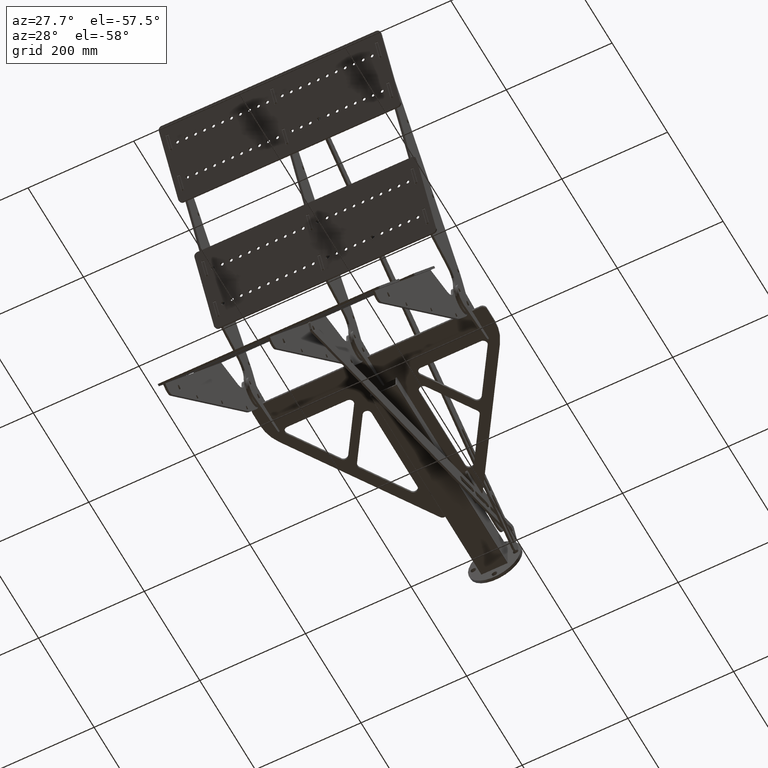
[diagram: clean part render]
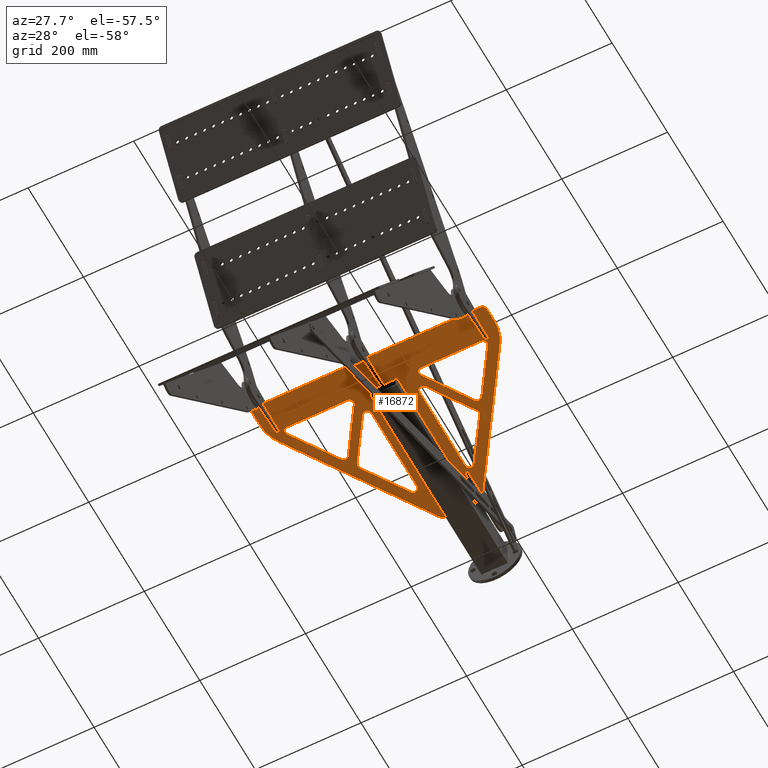
[diagram: same view with one face highlighted and labeled with its STEP entity id]
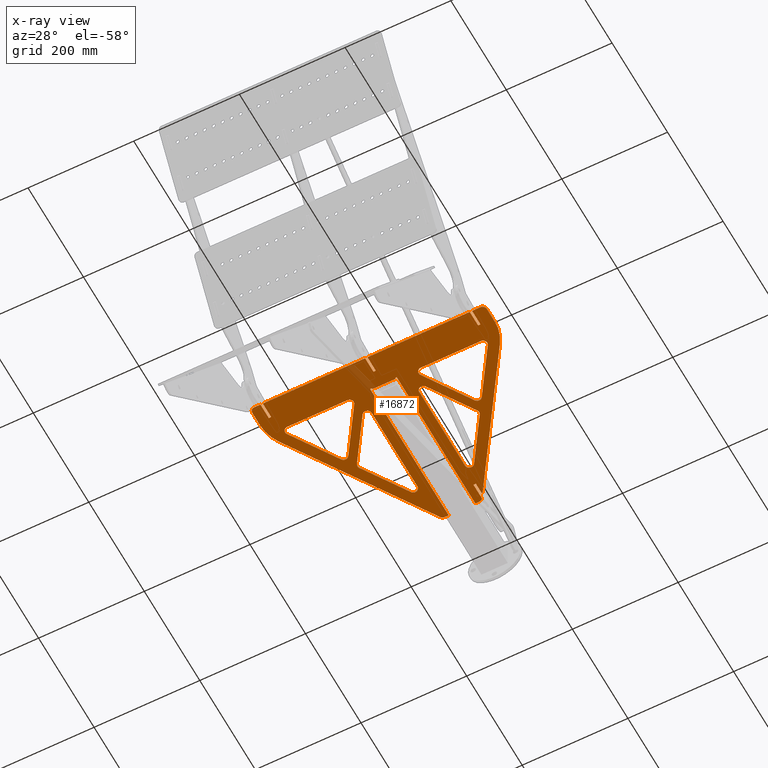
[diagram: x-ray of the same camera — body ghosted, the highlighted face saturated]
A machine part, auxiliary view. The second image highlights one B-rep face of the part: STEP entity #16872.
The next image is the same camera in x-ray: the body ghosted, the highlighted face saturated — about 2% of this face is hidden behind the body in this view.
In plain terms, the highlighted planar face has unit normal (0, 0, 1).
Its self-contained STEP definition (entity closure, byte-faithful):
#94 = DIRECTION ( 'NONE',  ( 0.0000000000000000000, 1.000000000000000000, 0.0000000000000000000 ) ) ;
#110 = DIRECTION ( 'NONE',  ( -0.0000000000000000000, -1.000000000000000000, 0.0000000000000000000 ) ) ;
#161 = VECTOR ( 'NONE', #9439, 1000.000000000000000 ) ;
#183 = CIRCLE ( 'NONE', #373, 80.00000000000001400 ) ;
#235 = CARTESIAN_POINT ( 'NONE',  ( 19.79999999999999400, 0.0000000000000000000, 0.0000000000000000000 ) ) ;
#274 = AXIS2_PLACEMENT_3D ( 'NONE', #15060, #7241, #16372 ) ;
#311 = VERTEX_POINT ( 'NONE', #14404 ) ;
#324 = CARTESIAN_POINT ( 'NONE',  ( 284.7075461424287800, 72.39119889813140700, 0.0000000000000000000 ) ) ;
#344 = CARTESIAN_POINT ( 'NONE',  ( 291.3946510641233700, 59.99999999962408000, 0.0000000000000000000 ) ) ;
#368 = DIRECTION ( 'NONE',  ( -1.000000000000000000, -0.0000000000000000000, -0.0000000000000000000 ) ) ;
#373 = AXIS2_PLACEMENT_3D ( 'NONE', #9337, #1478, #10697 ) ;
#381 = ORIENTED_EDGE ( 'NONE', *, *, #1196, .F. ) ;
#394 = DIRECTION ( 'NONE',  ( -1.000000000000000000, 0.0000000000000000000, 0.0000000000000000000 ) ) ;
#410 = ORIENTED_EDGE ( 'NONE', *, *, #9066, .F. ) ;
#427 = VERTEX_POINT ( 'NONE', #13125 ) ;
#435 = DIRECTION ( 'NONE',  ( 0.0000000000000000000, 0.0000000000000000000, 1.000000000000000000 ) ) ;
#517 = DIRECTION ( 'NONE',  ( -1.000000000000000000, -0.0000000000000000000, -0.0000000000000000000 ) ) ;
#669 = CARTESIAN_POINT ( 'NONE',  ( 162.3128950783386100, 270.7404790594720800, -2.168404344971008900E-016 ) ) ;
#673 = DIRECTION ( 'NONE',  ( -0.0000000000000000000, 0.0000000000000000000, 1.000000000000000000 ) ) ;
#730 = ORIENTED_EDGE ( 'NONE', *, *, #2771, .F. ) ;
#735 = EDGE_CURVE ( 'NONE', #6347, #4313, #16892, .T. ) ;
#750 = CARTESIAN_POINT ( 'NONE',  ( 291.3946510641233700, 67.99999999962462000, 0.0000000000000000000 ) ) ;
#778 = EDGE_CURVE ( 'NONE', #11012, #15670, #4795, .T. ) ;
#803 = CARTESIAN_POINT ( 'NONE',  ( 284.7075461424287800, 72.39119889813142100, 0.0000000000000000000 ) ) ;
#855 = AXIS2_PLACEMENT_3D ( 'NONE', #11854, #3995, #13168 ) ;
#939 = ORIENTED_EDGE ( 'NONE', *, *, #7111, .F. ) ;
#1122 = EDGE_LOOP ( 'NONE', ( #9484, #12285, #12233, #3597, #10579, #2766, #11557, #10279, #2126, #10404, #2640, #15803, #4146, #14798, #11065, #939, #5451, #15853, #4596, #13800, #9024, #10992, #8725, #11436, #11109, #9860, #16618, #16349, #2817, #14665, #4591, #3363, #5606, #7813, #3179, #4436, #10224, #9861, #1668 ) ) ;
#1196 = EDGE_CURVE ( 'NONE', #8208, #16731, #14202, .T. ) ;
#1204 = CARTESIAN_POINT ( 'NONE',  ( 200.9000000000000300, 60.00000000000000000, 0.0000000000000000000 ) ) ;
#1308 = VECTOR ( 'NONE', #8218, 999.9999999999998900 ) ;
#1401 = EDGE_CURVE ( 'NONE', #5699, #11332, #9810, .T. ) ;
#1436 = DIRECTION ( 'NONE',  ( -0.0000000000000000000, -0.0000000000000000000, -1.000000000000000000 ) ) ;
#1443 = CARTESIAN_POINT ( 'NONE',  ( 199.0000000000000000, 0.0000000000000000000, 0.0000000000000000000 ) ) ;
#1478 = DIRECTION ( 'NONE',  ( 0.0000000000000000000, 0.0000000000000000000, 1.000000000000000000 ) ) ;
#1489 = CARTESIAN_POINT ( 'NONE',  ( 0.0000000000000000000, 0.0000000000000000000, 0.0000000000000000000 ) ) ;
#1494 = LINE ( 'NONE', #2260, #8475 ) ;
#1559 = EDGE_CURVE ( 'NONE', #15234, #12397, #11870, .T. ) ;
#1565 = EDGE_CURVE ( 'NONE', #10385, #11012, #6739, .T. ) ;
#1583 = LINE ( 'NONE', #6701, #4650 ) ;
#1584 = CARTESIAN_POINT ( 'NONE',  ( 222.1999999999999900, 0.0000000000000000000, 0.0000000000000000000 ) ) ;
#1628 = VECTOR ( 'NONE', #2244, 1000.000000000000000 ) ;
#1661 = DIRECTION ( 'NONE',  ( 0.5488998623133517500, 0.8358881152118288200, 0.0000000000000000000 ) ) ;
#1668 = ORIENTED_EDGE ( 'NONE', *, *, #5022, .F. ) ;
#1710 = CIRCLE ( 'NONE', #10383, 7.999999999999952000 ) ;
#1850 = EDGE_CURVE ( 'NONE', #15375, #13154, #15315, .T. ) ;
#1854 = VERTEX_POINT ( 'NONE', #16932 ) ;
#1941 = DIRECTION ( 'NONE',  ( -0.0000000000000000000, -0.0000000000000000000, -1.000000000000000000 ) ) ;
#1948 = FACE_BOUND ( 'NONE', #7064, .T. ) ;
#2025 = VERTEX_POINT ( 'NONE', #803 ) ;
#2054 = ORIENTED_EDGE ( 'NONE', *, *, #2846, .F. ) ;
#2060 = DIRECTION ( 'NONE',  ( -1.000000000000000000, 0.0000000000000000000, 0.0000000000000000000 ) ) ;
#2088 = CARTESIAN_POINT ( 'NONE',  ( 436.0000000005181800, 8.000000000000000000, 0.0000000000000000000 ) ) ;
#2126 = ORIENTED_EDGE ( 'NONE', *, *, #5808, .F. ) ;
#2130 = AXIS2_PLACEMENT_3D ( 'NONE', #8552, #673, #9855 ) ;
#2169 = AXIS2_PLACEMENT_3D ( 'NONE', #9279, #1436, #10644 ) ;
#2194 = VERTEX_POINT ( 'NONE', #16922 ) ;
#2236 = CARTESIAN_POINT ( 'NONE',  ( 177.0000000000000300, 0.0000000000000000000, 0.0000000000000000000 ) ) ;
#2244 = DIRECTION ( 'NONE',  ( 0.0000000000000000000, 1.000000000000000000, -0.0000000000000000000 ) ) ;
#2248 = EDGE_CURVE ( 'NONE', #8329, #13548, #13483, .T. ) ;
#2260 = CARTESIAN_POINT ( 'NONE',  ( 0.0000000000000000000, 30.19999999999999900, 0.0000000000000000000 ) ) ;
#2358 = FACE_BOUND ( 'NONE', #3748, .T. ) ;
#2373 = LINE ( 'NONE', #8520, #12036 ) ;
#2377 = CARTESIAN_POINT ( 'NONE',  ( 283.3946510641233700, 67.99999999962462000, 0.0000000000000000000 ) ) ;
#2400 = EDGE_CURVE ( 'NONE', #3600, #11580, #3217, .T. ) ;
#2407 = ORIENTED_EDGE ( 'NONE', *, *, #4670, .F. ) ;
#2440 = AXIS2_PLACEMENT_3D ( 'NONE', #14030, #6180, #15343 ) ;
#2467 = CARTESIAN_POINT ( 'NONE',  ( 106.8193118788804300, 183.8406180475346000, 0.0000000000000000000 ) ) ;
#2605 = LINE ( 'NONE', #2973, #12231 ) ;
#2640 = ORIENTED_EDGE ( 'NONE', *, *, #13840, .F. ) ;
#2683 = CARTESIAN_POINT ( 'NONE',  ( 245.0000000000000000, 58.10000000000000900, 0.0000000000000000000 ) ) ;
#2688 = LINE ( 'NONE', #10283, #9657 ) ;
#2728 = CARTESIAN_POINT ( 'NONE',  ( 444.0000000005181300, 8.000000000000000000, 0.0000000000000000000 ) ) ;
#2766 = ORIENTED_EDGE ( 'NONE', *, *, #9180, .F. ) ;
#2771 = EDGE_CURVE ( 'NONE', #10186, #2025, #11363, .T. ) ;
#2794 = VECTOR ( 'NONE', #6722, 1000.000000000000000 ) ;
#2817 = ORIENTED_EDGE ( 'NONE', *, *, #7610, .F. ) ;
#2846 = EDGE_CURVE ( 'NONE', #5714, #16351, #16505, .T. ) ;
#2863 = VECTOR ( 'NONE', #15511, 1000.000000000000000 ) ;
#2960 = VERTEX_POINT ( 'NONE', #14207 ) ;
#2966 = VECTOR ( 'NONE', #11880, 1000.000000000000100 ) ;
#2973 = CARTESIAN_POINT ( 'NONE',  ( 0.0000000000000000000, 341.2426514745470700, 0.0000000000000000000 ) ) ;
#2997 = VERTEX_POINT ( 'NONE', #10862 ) ;
#3140 = EDGE_CURVE ( 'NONE', #15644, #1854, #13245, .T. ) ;
#3159 = PLANE ( 'NONE',  #2130 ) ;
#3179 = ORIENTED_EDGE ( 'NONE', *, *, #11307, .F. ) ;
#3195 = LINE ( 'NONE', #10522, #13263 ) ;
#3216 = CARTESIAN_POINT ( 'NONE',  ( 95.67799414878555800, 154.6914032301312700, 0.0000000000000000000 ) ) ;
#3217 = LINE ( 'NONE', #9892, #13287 ) ;
#3220 = DIRECTION ( 'NONE',  ( 0.0000000000000000000, 1.000000000000000000, -0.0000000000000000000 ) ) ;
#3264 = VECTOR ( 'NONE', #3817, 1000.000000000000200 ) ;
#3314 = EDGE_CURVE ( 'NONE', #12198, #3600, #14831, .T. ) ;
#3363 = ORIENTED_EDGE ( 'NONE', *, *, #2400, .F. ) ;
#3397 = CARTESIAN_POINT ( 'NONE',  ( 245.0000000000000000, 57.99999999999999300, 0.0000000000000000000 ) ) ;
#3431 = DIRECTION ( 'NONE',  ( -1.000000000000000000, 0.0000000000000000000, 0.0000000000000000000 ) ) ;
#3506 = CARTESIAN_POINT ( 'NONE',  ( 266.1999999999938500, 327.4167527541389400, 0.0000000000000000000 ) ) ;
#3597 = ORIENTED_EDGE ( 'NONE', *, *, #9665, .F. ) ;
#3600 = VERTEX_POINT ( 'NONE', #16562 ) ;
#3618 = VERTEX_POINT ( 'NONE', #4846 ) ;
#3696 = AXIS2_PLACEMENT_3D ( 'NONE', #11972, #4123, #13310 ) ;
#3713 = VERTEX_POINT ( 'NONE', #9455 ) ;
#3740 = DIRECTION ( 'NONE',  ( -0.0000000000000000000, -0.0000000000000000000, -1.000000000000000000 ) ) ;
#3746 = DIRECTION ( 'NONE',  ( 0.0000000000000000000, 0.0000000000000000000, 1.000000000000000000 ) ) ;
#3748 = EDGE_LOOP ( 'NONE', ( #8852, #5121, #8547, #13450, #5136, #16050, #14816 ) ) ;
#3763 = VECTOR ( 'NONE', #8122, 1000.000000000000000 ) ;
#3768 = EDGE_CURVE ( 'NONE', #5538, #311, #10540, .T. ) ;
#3795 = EDGE_CURVE ( 'NONE', #9329, #11891, #6617, .T. ) ;
#3817 = DIRECTION ( 'NONE',  ( 0.5488998623196977800, -0.8358881152076614900, 0.0000000000000000000 ) ) ;
#3925 = VECTOR ( 'NONE', #8326, 999.9999999999998900 ) ;
#3959 = CARTESIAN_POINT ( 'NONE',  ( 19.79999999999999400, 0.0000000000000000000, 0.0000000000000000000 ) ) ;
#3968 = CARTESIAN_POINT ( 'NONE',  ( 24.19999999999993900, 0.0000000000000000000, 0.0000000000000000000 ) ) ;
#3995 = DIRECTION ( 'NONE',  ( -0.0000000000000000000, -0.0000000000000000000, -1.000000000000000000 ) ) ;
#4000 = EDGE_CURVE ( 'NONE', #6264, #8307, #4150, .T. ) ;
#4105 = DIRECTION ( 'NONE',  ( -0.0000000000000000000, -0.0000000000000000000, -1.000000000000000000 ) ) ;
#4122 = CARTESIAN_POINT ( 'NONE',  ( 266.1999999999938500, 0.0000000000000000000, 0.0000000000000000000 ) ) ;
#4123 = DIRECTION ( 'NONE',  ( 0.0000000000000000000, 0.0000000000000000000, 1.000000000000000000 ) ) ;
#4146 = ORIENTED_EDGE ( 'NONE', *, *, #5003, .F. ) ;
#4150 = LINE ( 'NONE', #8805, #11110 ) ;
#4156 = DIRECTION ( 'NONE',  ( 0.5488998623202519000, -0.8358881152072976700, 0.0000000000000000000 ) ) ;
#4184 = DIRECTION ( 'NONE',  ( 0.5488998623196979000, 0.8358881152076613800, 0.0000000000000000000 ) ) ;
#4240 = AXIS2_PLACEMENT_3D ( 'NONE', #14360, #5215, #7798 ) ;
#4313 = VERTEX_POINT ( 'NONE', #14593 ) ;
#4376 = VECTOR ( 'NONE', #1661, 1000.000000000000000 ) ;
#4396 = VECTOR ( 'NONE', #9418, 1000.000000000000000 ) ;
#4416 = CARTESIAN_POINT ( 'NONE',  ( 196.8000000000000100, 0.0000000000000000000, 0.0000000000000000000 ) ) ;
#4436 = ORIENTED_EDGE ( 'NONE', *, *, #14221, .F. ) ;
#4518 = DIRECTION ( 'NONE',  ( -1.000000000000000000, 0.0000000000000000000, 0.0000000000000000000 ) ) ;
#4520 = CARTESIAN_POINT ( 'NONE',  ( 267.0000000000000000, 0.0000000000000000000, 0.0000000000000000000 ) ) ;
#4591 = ORIENTED_EDGE ( 'NONE', *, *, #7976, .F. ) ;
#4596 = ORIENTED_EDGE ( 'NONE', *, *, #10898, .F. ) ;
#4620 = LINE ( 'NONE', #13373, #11181 ) ;
#4650 = VECTOR ( 'NONE', #8020, 1000.000000000000000 ) ;
#4670 = EDGE_CURVE ( 'NONE', #16351, #12955, #12865, .T. ) ;
#4711 = CIRCLE ( 'NONE', #15064, 7.999999999999979600 ) ;
#4776 = VERTEX_POINT ( 'NONE', #3506 ) ;
#4795 = LINE ( 'NONE', #13325, #11767 ) ;
#4820 = EDGE_CURVE ( 'NONE', #16917, #2960, #15714, .T. ) ;
#4823 = VECTOR ( 'NONE', #8729, 1000.000000000000000 ) ;
#4838 = CARTESIAN_POINT ( 'NONE',  ( 30.75063936099930100, 67.99999999999994300, 0.0000000000000000000 ) ) ;
#4846 = CARTESIAN_POINT ( 'NONE',  ( 341.6349009296021700, 159.0826021287640200, 0.0000000000000000000 ) ) ;
#4868 = VERTEX_POINT ( 'NONE', #16722 ) ;
#4882 = VECTOR ( 'NONE', #110, 1000.000000000000000 ) ;
#4889 = VECTOR ( 'NONE', #9074, 1000.000000000000100 ) ;
#4904 = CARTESIAN_POINT ( 'NONE',  ( 261.6871049216591100, 337.6338503731076300, 0.0000000000000000000 ) ) ;
#4910 = CARTESIAN_POINT ( 'NONE',  ( 268.0358881152012000, 327.9656526164591800, -2.168404344971008900E-016 ) ) ;
#5003 = EDGE_CURVE ( 'NONE', #16664, #7201, #15699, .T. ) ;
#5022 = EDGE_CURVE ( 'NONE', #311, #15857, #10628, .T. ) ;
#5079 = CARTESIAN_POINT ( 'NONE',  ( 335.8677930428457300, 188.2318169462018900, 0.0000000000000000000 ) ) ;
#5119 = DIRECTION ( 'NONE',  ( 0.0000000000000000000, 0.0000000000000000000, 1.000000000000000000 ) ) ;
#5121 = ORIENTED_EDGE ( 'NONE', *, *, #2248, .F. ) ;
#5136 = ORIENTED_EDGE ( 'NONE', *, *, #9708, .F. ) ;
#5209 = EDGE_CURVE ( 'NONE', #13548, #8494, #10803, .T. ) ;
#5215 = DIRECTION ( 'NONE',  ( -0.0000000000000000000, -0.0000000000000000000, -1.000000000000000000 ) ) ;
#5249 = VERTEX_POINT ( 'NONE', #15070 ) ;
#5254 = EDGE_LOOP ( 'NONE', ( #6575, #5439, #16702, #2407, #2054, #410, #7627 ) ) ;
#5300 = LINE ( 'NONE', #16603, #7965 ) ;
#5326 = CIRCLE ( 'NONE', #7011, 8.000000000000007100 ) ;
#5334 = CARTESIAN_POINT ( 'NONE',  ( 415.8000000000001300, 30.20000000000000300, 0.0000000000000000000 ) ) ;
#5353 = CARTESIAN_POINT ( 'NONE',  ( 430.8710492171011900, 79.99332606571113000, 0.0000000000000000000 ) ) ;
#5403 = AXIS2_PLACEMENT_3D ( 'NONE', #11582, #3740, #12903 ) ;
#5415 = CARTESIAN_POINT ( 'NONE',  ( 444.0000000005181300, 36.08133708008970300, 0.0000000000000000000 ) ) ;
#5439 = ORIENTED_EDGE ( 'NONE', *, *, #6081, .F. ) ;
#5451 = ORIENTED_EDGE ( 'NONE', *, *, #16458, .F. ) ;
#5453 = DIRECTION ( 'NONE',  ( 0.0000000000000000000, 1.000000000000000000, -0.0000000000000000000 ) ) ;
#5504 = CARTESIAN_POINT ( 'NONE',  ( 189.0000000000000000, 341.2426514745470200, 0.0000000000000000000 ) ) ;
#5513 = CARTESIAN_POINT ( 'NONE',  ( 24.19999999999995700, 0.0000000000000000000, 0.0000000000000000000 ) ) ;
#5538 = VERTEX_POINT ( 'NONE', #5415 ) ;
#5552 = CARTESIAN_POINT ( 'NONE',  ( 19.79999999999997200, 30.19999999999999600, 0.0000000000000000000 ) ) ;
#5561 = CARTESIAN_POINT ( 'NONE',  ( 420.2000000000000500, 30.20000000000000300, 0.0000000000000000000 ) ) ;
#5606 = ORIENTED_EDGE ( 'NONE', *, *, #3314, .F. ) ;
#5623 = EDGE_CURVE ( 'NONE', #1854, #6264, #16079, .T. ) ;
#5633 = CARTESIAN_POINT ( 'NONE',  ( 159.2924538582330700, 72.39119889855761900, -2.168404344971008900E-016 ) ) ;
#5634 = ORIENTED_EDGE ( 'NONE', *, *, #6770, .F. ) ;
#5699 = VERTEX_POINT ( 'NONE', #1204 ) ;
#5700 = CARTESIAN_POINT ( 'NONE',  ( 247.2000000000000200, 341.2426514745468500, 0.0000000000000000000 ) ) ;
#5712 = LINE ( 'NONE', #10643, #12678 ) ;
#5714 = VERTEX_POINT ( 'NONE', #13022 ) ;
#5719 = DIRECTION ( 'NONE',  ( -0.0000000000000000000, -0.0000000000000000000, -1.000000000000000000 ) ) ;
#5808 = EDGE_CURVE ( 'NONE', #2960, #10385, #15030, .T. ) ;
#5815 = VECTOR ( 'NONE', #15636, 1000.000000000000000 ) ;
#5822 = VECTOR ( 'NONE', #3220, 1000.000000000000000 ) ;
#5866 = DIRECTION ( 'NONE',  ( 0.5488998623196980100, 0.8358881152076612600, 0.0000000000000000000 ) ) ;
#5929 = EDGE_CURVE ( 'NONE', #9060, #5249, #8300, .T. ) ;
#5949 = VERTEX_POINT ( 'NONE', #6900 ) ;
#6081 = EDGE_CURVE ( 'NONE', #427, #14480, #11553, .T. ) ;
#6175 = EDGE_CURVE ( 'NONE', #2997, #14059, #1710, .T. ) ;
#6180 = DIRECTION ( 'NONE',  ( -0.0000000000000000000, -0.0000000000000000000, -1.000000000000000000 ) ) ;
#6226 = EDGE_CURVE ( 'NONE', #10977, #16664, #1494, .T. ) ;
#6253 = LINE ( 'NONE', #1443, #2794 ) ;
#6264 = VERTEX_POINT ( 'NONE', #14071 ) ;
#6296 = CIRCLE ( 'NONE', #16608, 8.000000000000000000 ) ;
#6347 = VERTEX_POINT ( 'NONE', #15551 ) ;
#6436 = LINE ( 'NONE', #10660, #9910 ) ;
#6506 = VERTEX_POINT ( 'NONE', #8781 ) ;
#6575 = ORIENTED_EDGE ( 'NONE', *, *, #15978, .F. ) ;
#6617 = LINE ( 'NONE', #4416, #13588 ) ;
#6661 = DIRECTION ( 'NONE',  ( 1.000000000000000000, 0.0000000000000000000, 0.0000000000000000000 ) ) ;
#6701 = CARTESIAN_POINT ( 'NONE',  ( 444.0000000005181300, 0.0000000000000000000, 0.0000000000000000000 ) ) ;
#6706 = AXIS2_PLACEMENT_3D ( 'NONE', #7120, #16240, #8427 ) ;
#6722 = DIRECTION ( 'NONE',  ( 0.0000000000000000000, 1.000000000000000000, 0.0000000000000000000 ) ) ;
#6739 = LINE ( 'NONE', #1489, #13695 ) ;
#6755 = CARTESIAN_POINT ( 'NONE',  ( 196.8000000000000100, 341.2426514745470700, 0.0000000000000000000 ) ) ;
#6764 = LINE ( 'NONE', #16868, #3264 ) ;
#6770 = EDGE_CURVE ( 'NONE', #16731, #10186, #6830, .T. ) ;
#6777 = DIRECTION ( 'NONE',  ( -0.0000000000000000000, -0.0000000000000000000, -1.000000000000000000 ) ) ;
#6830 = CIRCLE ( 'NONE', #11036, 8.000000000000007100 ) ;
#6836 = LINE ( 'NONE', #13133, #9882 ) ;
#6870 = DIRECTION ( 'NONE',  ( 0.0000000000000000000, 0.0000000000000000000, 1.000000000000000000 ) ) ;
#6896 = VECTOR ( 'NONE', #517, 1000.000000000000000 ) ;
#6900 = CARTESIAN_POINT ( 'NONE',  ( 177.0000000000000300, 101.3319559341547900, 0.0000000000000000000 ) ) ;
#7008 = EDGE_CURVE ( 'NONE', #8307, #6347, #8085, .T. ) ;
#7011 = AXIS2_PLACEMENT_3D ( 'NONE', #14602, #6777, #15922 ) ;
#7050 = CARTESIAN_POINT ( 'NONE',  ( 13.12895078338715000, 79.99332606607187300, -2.168404344971008900E-016 ) ) ;
#7064 = EDGE_LOOP ( 'NONE', ( #10867, #730, #5634, #381, #14820, #10648, #15774 ) ) ;
#7111 = EDGE_CURVE ( 'NONE', #2194, #9703, #3195, .T. ) ;
#7120 = CARTESIAN_POINT ( 'NONE',  ( 114.8193118788804300, 183.8406180475346000, 0.0000000000000000000 ) ) ;
#7142 = EDGE_CURVE ( 'NONE', #11924, #11332, #6253, .T. ) ;
#7201 = VERTEX_POINT ( 'NONE', #5513 ) ;
#7212 = EDGE_CURVE ( 'NONE', #14198, #14348, #4620, .T. ) ;
#7241 = DIRECTION ( 'NONE',  ( -0.0000000000000000000, -0.0000000000000000000, -1.000000000000000000 ) ) ;
#7267 = DIRECTION ( 'NONE',  ( -0.0000000000000000000, -0.0000000000000000000, -1.000000000000000000 ) ) ;
#7275 = CARTESIAN_POINT ( 'NONE',  ( 182.3128950783386400, 337.6338503731045600, -2.168404344971008900E-016 ) ) ;
#7328 = EDGE_CURVE ( 'NONE', #8494, #8456, #9541, .T. ) ;
#7352 = ORIENTED_EDGE ( 'NONE', *, *, #7008, .F. ) ;
#7374 = CARTESIAN_POINT ( 'NONE',  ( 243.0999999999999900, 60.00000000000000000, 0.0000000000000000000 ) ) ;
#7386 = CARTESIAN_POINT ( 'NONE',  ( 0.0000000000000000000, 36.08133708049572900, 0.0000000000000000000 ) ) ;
#7392 = DIRECTION ( 'NONE',  ( 1.000000000000000000, 0.0000000000000000000, 0.0000000000000000000 ) ) ;
#7473 = CARTESIAN_POINT ( 'NONE',  ( 0.0000000000000000000, 57.99999999999999300, 0.0000000000000000000 ) ) ;
#7610 = EDGE_CURVE ( 'NONE', #14348, #11834, #8491, .T. ) ;
#7627 = ORIENTED_EDGE ( 'NONE', *, *, #13088, .F. ) ;
#7682 = CIRCLE ( 'NONE', #14010, 8.000000000000007100 ) ;
#7693 = VERTEX_POINT ( 'NONE', #5504 ) ;
#7706 = DIRECTION ( 'NONE',  ( -1.000000000000000000, -0.0000000000000000000, -0.0000000000000000000 ) ) ;
#7724 = EDGE_CURVE ( 'NONE', #2025, #3618, #14813, .T. ) ;
#7743 = LINE ( 'NONE', #9382, #10837 ) ;
#7781 = CARTESIAN_POINT ( 'NONE',  ( 182.3128950783385000, 337.6338503731043400, 0.0000000000000000000 ) ) ;
#7798 = DIRECTION ( 'NONE',  ( -1.000000000000000000, 0.0000000000000000000, 0.0000000000000000000 ) ) ;
#7810 = VERTEX_POINT ( 'NONE', #11722 ) ;
#7813 = ORIENTED_EDGE ( 'NONE', *, *, #8293, .F. ) ;
#7828 = LINE ( 'NONE', #14823, #3925 ) ;
#7867 = DIRECTION ( 'NONE',  ( -0.0000000000000000000, -1.000000000000000000, 0.0000000000000000000 ) ) ;
#7965 = VECTOR ( 'NONE', #10106, 1000.000000000000000 ) ;
#7976 = EDGE_CURVE ( 'NONE', #11580, #14198, #8461, .T. ) ;
#8020 = DIRECTION ( 'NONE',  ( 0.0000000000000000000, 1.000000000000000000, -0.0000000000000000000 ) ) ;
#8085 = CIRCLE ( 'NONE', #4240, 8.000000000000007100 ) ;
#8122 = DIRECTION ( 'NONE',  ( -1.000000000000000000, -0.0000000000000000000, -0.0000000000000000000 ) ) ;
#8179 = DIRECTION ( 'NONE',  ( -0.0000000000000000000, -1.000000000000000000, 0.0000000000000000000 ) ) ;
#8202 = CARTESIAN_POINT ( 'NONE',  ( 415.8000000000001300, 0.0000000000000000000, 0.0000000000000000000 ) ) ;
#8208 = VERTEX_POINT ( 'NONE', #16495 ) ;
#8218 = DIRECTION ( 'NONE',  ( -0.5488998623196984500, 0.8358881152076611500, 0.0000000000000000000 ) ) ;
#8273 = DIRECTION ( 'NONE',  ( -0.0000000000000000000, -0.0000000000000000000, -1.000000000000000000 ) ) ;
#8293 = EDGE_CURVE ( 'NONE', #14979, #12198, #2688, .T. ) ;
#8300 = LINE ( 'NONE', #16032, #1308 ) ;
#8307 = VERTEX_POINT ( 'NONE', #5079 ) ;
#8321 = CARTESIAN_POINT ( 'NONE',  ( 364.0000000005181800, 36.08133708008970300, 0.0000000000000000000 ) ) ;
#8326 = DIRECTION ( 'NONE',  ( -0.7071067811865462400, 0.7071067811865489100, 0.0000000000000000000 ) ) ;
#8329 = VERTEX_POINT ( 'NONE', #2467 ) ;
#8427 = DIRECTION ( 'NONE',  ( -1.000000000000000000, 0.0000000000000000000, 0.0000000000000000000 ) ) ;
#8456 = VERTEX_POINT ( 'NONE', #12428 ) ;
#8461 = LINE ( 'NONE', #14747, #15387 ) ;
#8475 = VECTOR ( 'NONE', #11445, 1000.000000000000000 ) ;
#8491 = LINE ( 'NONE', #11803, #11554 ) ;
#8494 = VERTEX_POINT ( 'NONE', #669 ) ;
#8497 = CARTESIAN_POINT ( 'NONE',  ( 196.8000000000000100, 57.99999999999999300, 0.0000000000000000000 ) ) ;
#8520 = CARTESIAN_POINT ( 'NONE',  ( 217.7999999999999800, 0.0000000000000000000, 0.0000000000000000000 ) ) ;
#8526 = ORIENTED_EDGE ( 'NONE', *, *, #735, .F. ) ;
#8547 = ORIENTED_EDGE ( 'NONE', *, *, #13224, .F. ) ;
#8552 = CARTESIAN_POINT ( 'NONE',  ( 0.0000000000000000000, 0.0000000000000000000, 0.0000000000000000000 ) ) ;
#8581 = VERTEX_POINT ( 'NONE', #7386 ) ;
#8626 = VERTEX_POINT ( 'NONE', #16637 ) ;
#8725 = ORIENTED_EDGE ( 'NONE', *, *, #3795, .F. ) ;
#8729 = DIRECTION ( 'NONE',  ( -1.000000000000000000, -0.0000000000000000000, -0.0000000000000000000 ) ) ;
#8731 = VECTOR ( 'NONE', #7867, 1000.000000000000000 ) ;
#8748 = VECTOR ( 'NONE', #10097, 1000.000000000000000 ) ;
#8781 = CARTESIAN_POINT ( 'NONE',  ( 355.0091107729554700, 159.0826021288199000, 0.0000000000000000000 ) ) ;
#8805 = CARTESIAN_POINT ( 'NONE',  ( 281.6871049216583200, 270.7404790595608700, 0.0000000000000000000 ) ) ;
#8832 = DIRECTION ( 'NONE',  ( -0.5488998623199253800, 0.8358881152075121600, 0.0000000000000000000 ) ) ;
#8852 = ORIENTED_EDGE ( 'NONE', *, *, #5209, .F. ) ;
#9024 = ORIENTED_EDGE ( 'NONE', *, *, #10802, .F. ) ;
#9060 = VERTEX_POINT ( 'NONE', #16794 ) ;
#9066 = EDGE_CURVE ( 'NONE', #3713, #5714, #13021, .T. ) ;
#9074 = DIRECTION ( 'NONE',  ( -0.5488998623196979000, -0.8358881152076614900, 0.0000000000000000000 ) ) ;
#9155 = CARTESIAN_POINT ( 'NONE',  ( 267.0000000000000000, 101.3319559341549500, 0.0000000000000000000 ) ) ;
#9180 = EDGE_CURVE ( 'NONE', #15670, #15234, #16262, .T. ) ;
#9214 = EDGE_CURVE ( 'NONE', #7810, #8208, #7682, .T. ) ;
#9235 = EDGE_CURVE ( 'NONE', #6506, #7810, #6436, .T. ) ;
#9262 = VERTEX_POINT ( 'NONE', #14614 ) ;
#9279 = CARTESIAN_POINT ( 'NONE',  ( 169.0000000000000000, 101.3319559341546400, 0.0000000000000000000 ) ) ;
#9329 = VERTEX_POINT ( 'NONE', #8497 ) ;
#9337 = CARTESIAN_POINT ( 'NONE',  ( 80.00000000000001400, 36.08133708049589200, 0.0000000000000000000 ) ) ;
#9370 = CARTESIAN_POINT ( 'NONE',  ( 102.3650990704468900, 159.0826021286888500, -2.168404344971008900E-016 ) ) ;
#9382 = CARTESIAN_POINT ( 'NONE',  ( 32.06353443933806300, 72.39119889855763300, 0.0000000000000000000 ) ) ;
#9413 = CARTESIAN_POINT ( 'NONE',  ( 24.19999999999993900, 30.19999999999999600, 0.0000000000000000000 ) ) ;
#9418 = DIRECTION ( 'NONE',  ( 0.0000000000000000000, 1.000000000000000000, -0.0000000000000000000 ) ) ;
#9422 = CARTESIAN_POINT ( 'NONE',  ( 0.0000000000000000000, 59.99999999962354700, 0.0000000000000000000 ) ) ;
#9439 = DIRECTION ( 'NONE',  ( -0.0000000000000000000, -1.000000000000000000, 0.0000000000000000000 ) ) ;
#9455 = CARTESIAN_POINT ( 'NONE',  ( 152.6053489365717400, 59.99999999999998600, 0.0000000000000000000 ) ) ;
#9484 = ORIENTED_EDGE ( 'NONE', *, *, #3768, .F. ) ;
#9489 = CARTESIAN_POINT ( 'NONE',  ( 198.9999999999999700, 57.99999999999999300, 0.0000000000000000000 ) ) ;
#9530 = LINE ( 'NONE', #16543, #13017 ) ;
#9541 = CIRCLE ( 'NONE', #10033, 7.999999999999979600 ) ;
#9605 = CIRCLE ( 'NONE', #11075, 8.000000000000007100 ) ;
#9632 = DIRECTION ( 'NONE',  ( -1.000000000000000000, 1.734723475976808100E-015, 0.0000000000000000000 ) ) ;
#9657 = VECTOR ( 'NONE', #8832, 1000.000000000000100 ) ;
#9665 = EDGE_CURVE ( 'NONE', #12397, #2997, #6836, .T. ) ;
#9703 = VERTEX_POINT ( 'NONE', #3959 ) ;
#9708 = EDGE_CURVE ( 'NONE', #5949, #9060, #16421, .T. ) ;
#9801 = CARTESIAN_POINT ( 'NONE',  ( 217.7999999999999800, 30.19999999999999600, 0.0000000000000000000 ) ) ;
#9804 = CARTESIAN_POINT ( 'NONE',  ( 291.3946510641233700, 67.99999999962462000, 0.0000000000000000000 ) ) ;
#9810 = LINE ( 'NONE', #16721, #2863 ) ;
#9855 = DIRECTION ( 'NONE',  ( 1.000000000000000000, 0.0000000000000000000, 0.0000000000000000000 ) ) ;
#9860 = ORIENTED_EDGE ( 'NONE', *, *, #1401, .F. ) ;
#9861 = ORIENTED_EDGE ( 'NONE', *, *, #11851, .F. ) ;
#9869 = ORIENTED_EDGE ( 'NONE', *, *, #3140, .F. ) ;
#9882 = VECTOR ( 'NONE', #10515, 1000.000000000000000 ) ;
#9892 = CARTESIAN_POINT ( 'NONE',  ( 0.0000000000000000000, 341.2426514745469000, 0.0000000000000000000 ) ) ;
#9910 = VECTOR ( 'NONE', #4156, 1000.000000000000000 ) ;
#9916 = DIRECTION ( 'NONE',  ( -0.0000000000000000000, -0.0000000000000000000, -1.000000000000000000 ) ) ;
#10033 = AXIS2_PLACEMENT_3D ( 'NONE', #13582, #5719, #14878 ) ;
#10070 = DIRECTION ( 'NONE',  ( 0.5488998623202758800, -0.8358881152072817900, 0.0000000000000000000 ) ) ;
#10097 = DIRECTION ( 'NONE',  ( 1.000000000000000000, 0.0000000000000000000, 0.0000000000000000000 ) ) ;
#10106 = DIRECTION ( 'NONE',  ( -0.0000000000000000000, -1.000000000000000000, 0.0000000000000000000 ) ) ;
#10186 = VERTEX_POINT ( 'NONE', #2377 ) ;
#10224 = ORIENTED_EDGE ( 'NONE', *, *, #11465, .F. ) ;
#10279 = ORIENTED_EDGE ( 'NONE', *, *, #1565, .F. ) ;
#10281 = EDGE_CURVE ( 'NONE', #4313, #15644, #15380, .T. ) ;
#10283 = CARTESIAN_POINT ( 'NONE',  ( 337.7559021496654200, 221.7930424117452600, -1.734723475976807100E-015 ) ) ;
#10334 = CARTESIAN_POINT ( 'NONE',  ( 32.06353443933804200, 72.39119889855759000, -2.168404344971008900E-016 ) ) ;
#10383 = AXIS2_PLACEMENT_3D ( 'NONE', #2088, #11272, #3431 ) ;
#10385 = VERTEX_POINT ( 'NONE', #1584 ) ;
#10404 = ORIENTED_EDGE ( 'NONE', *, *, #4820, .F. ) ;
#10436 = VERTEX_POINT ( 'NONE', #12083 ) ;
#10485 = CARTESIAN_POINT ( 'NONE',  ( 420.2000000000000500, 0.0000000000000000000, 0.0000000000000000000 ) ) ;
#10515 = DIRECTION ( 'NONE',  ( 1.000000000000000000, 0.0000000000000000000, 0.0000000000000000000 ) ) ;
#10522 = CARTESIAN_POINT ( 'NONE',  ( 0.0000000000000000000, 0.0000000000000000000, 0.0000000000000000000 ) ) ;
#10540 = CIRCLE ( 'NONE', #16598, 79.99999999999995700 ) ;
#10579 = ORIENTED_EDGE ( 'NONE', *, *, #1559, .F. ) ;
#10586 = CARTESIAN_POINT ( 'NONE',  ( 222.1999999999999900, 0.0000000000000000000, 0.0000000000000000000 ) ) ;
#10628 = LINE ( 'NONE', #5353, #14050 ) ;
#10639 = CIRCLE ( 'NONE', #3696, 1.000000000000000900 ) ;
#10643 = CARTESIAN_POINT ( 'NONE',  ( 0.0000000000000000000, 60.00000000000000000, 0.0000000000000000000 ) ) ;
#10644 = DIRECTION ( 'NONE',  ( -1.000000000000000000, 0.0000000000000000000, 0.0000000000000000000 ) ) ;
#10648 = ORIENTED_EDGE ( 'NONE', *, *, #9235, .F. ) ;
#10650 = CARTESIAN_POINT ( 'NONE',  ( 420.2000000000000500, 0.0000000000000000000, 0.0000000000000000000 ) ) ;
#10660 = CARTESIAN_POINT ( 'NONE',  ( 355.0091107729554700, 159.0826021288199900, 0.0000000000000000000 ) ) ;
#10672 = LINE ( 'NONE', #4122, #161 ) ;
#10697 = DIRECTION ( 'NONE',  ( -1.000000000000000000, 1.778091562876227000E-014, 0.0000000000000000000 ) ) ;
#10802 = EDGE_CURVE ( 'NONE', #7693, #15375, #4711, .T. ) ;
#10803 = LINE ( 'NONE', #15012, #14242 ) ;
#10837 = VECTOR ( 'NONE', #4184, 1000.000000000000200 ) ;
#10862 = CARTESIAN_POINT ( 'NONE',  ( 436.0000000005181800, 2.428612866367529900E-014, 0.0000000000000000000 ) ) ;
#10867 = ORIENTED_EDGE ( 'NONE', *, *, #7724, .F. ) ;
#10898 = EDGE_CURVE ( 'NONE', #13154, #8581, #183, .T. ) ;
#10977 = VERTEX_POINT ( 'NONE', #5552 ) ;
#10992 = ORIENTED_EDGE ( 'NONE', *, *, #13680, .F. ) ;
#11012 = VERTEX_POINT ( 'NONE', #8202 ) ;
#11036 = AXIS2_PLACEMENT_3D ( 'NONE', #9804, #1941, #11125 ) ;
#11065 = ORIENTED_EDGE ( 'NONE', *, *, #12476, .F. ) ;
#11075 = AXIS2_PLACEMENT_3D ( 'NONE', #15092, #7267, #16402 ) ;
#11109 = ORIENTED_EDGE ( 'NONE', *, *, #7142, .T. ) ;
#11110 = VECTOR ( 'NONE', #10070, 1000.000000000000200 ) ;
#11125 = DIRECTION ( 'NONE',  ( -1.000000000000000000, 0.0000000000000000000, 0.0000000000000000000 ) ) ;
#11146 = DIRECTION ( 'NONE',  ( 0.0000000000000000000, 1.000000000000000000, -0.0000000000000000000 ) ) ;
#11181 = VECTOR ( 'NONE', #15977, 1000.000000000000000 ) ;
#11258 = VERTEX_POINT ( 'NONE', #7374 ) ;
#11272 = DIRECTION ( 'NONE',  ( 0.0000000000000000000, 0.0000000000000000000, 1.000000000000000000 ) ) ;
#11307 = EDGE_CURVE ( 'NONE', #8626, #14979, #15130, .T. ) ;
#11332 = VERTEX_POINT ( 'NONE', #12739 ) ;
#11339 = CARTESIAN_POINT ( 'NONE',  ( 0.0000000000000000000, 30.19999999999999900, 0.0000000000000000000 ) ) ;
#11346 = LINE ( 'NONE', #235, #4396 ) ;
#11363 = CIRCLE ( 'NONE', #14505, 8.000000000000007100 ) ;
#11430 = CARTESIAN_POINT ( 'NONE',  ( 261.8000000000130900, 0.0000000000000000000, 0.0000000000000000000 ) ) ;
#11436 = ORIENTED_EDGE ( 'NONE', *, *, #12170, .F. ) ;
#11445 = DIRECTION ( 'NONE',  ( 1.000000000000000000, 0.0000000000000000000, 0.0000000000000000000 ) ) ;
#11465 = EDGE_CURVE ( 'NONE', #4776, #10436, #10672, .T. ) ;
#11553 = CIRCLE ( 'NONE', #14181, 7.999999999999992900 ) ;
#11554 = VECTOR ( 'NONE', #94, 1000.000000000000000 ) ;
#11557 = ORIENTED_EDGE ( 'NONE', *, *, #778, .F. ) ;
#11568 = VECTOR ( 'NONE', #13204, 1000.000000000000000 ) ;
#11580 = VERTEX_POINT ( 'NONE', #5700 ) ;
#11582 = CARTESIAN_POINT ( 'NONE',  ( 348.3220058512972100, 154.6914032302577800, 0.0000000000000000000 ) ) ;
#11587 = CARTESIAN_POINT ( 'NONE',  ( 8.000000000000000000, 8.000000000000000000, 0.0000000000000000000 ) ) ;
#11722 = CARTESIAN_POINT ( 'NONE',  ( 411.9364655611542500, 72.39119889818562100, 0.0000000000000000000 ) ) ;
#11767 = VECTOR ( 'NONE', #5453, 1000.000000000000000 ) ;
#11793 = LINE ( 'NONE', #2236, #14846 ) ;
#11803 = CARTESIAN_POINT ( 'NONE',  ( 245.0000000000000000, 0.0000000000000000000, 0.0000000000000000000 ) ) ;
#11834 = VERTEX_POINT ( 'NONE', #2683 ) ;
#11851 = EDGE_CURVE ( 'NONE', #15857, #4776, #10639, .T. ) ;
#11854 = CARTESIAN_POINT ( 'NONE',  ( 275.0000000000000000, 101.3319559341547800, 0.0000000000000000000 ) ) ;
#11870 = LINE ( 'NONE', #10650, #4882 ) ;
#11880 = DIRECTION ( 'NONE',  ( -0.5488998623196912300, -0.8358881152076657100, 0.0000000000000000000 ) ) ;
#11891 = VERTEX_POINT ( 'NONE', #6755 ) ;
#11924 = VERTEX_POINT ( 'NONE', #9489 ) ;
#11931 = DIRECTION ( 'NONE',  ( 1.000000000000000000, 0.0000000000000000000, 0.0000000000000000000 ) ) ;
#11942 = CARTESIAN_POINT ( 'NONE',  ( 405.2493606394958800, 67.99999999962354000, 0.0000000000000000000 ) ) ;
#11972 = CARTESIAN_POINT ( 'NONE',  ( 267.1999999999938500, 327.4167527541389400, 0.0000000000000000000 ) ) ;
#11973 = CARTESIAN_POINT ( 'NONE',  ( 108.1322069572191400, 188.2318169460922400, -2.168404344971008900E-016 ) ) ;
#12036 = VECTOR ( 'NONE', #11146, 1000.000000000000000 ) ;
#12083 = CARTESIAN_POINT ( 'NONE',  ( 266.1999999999938500, 306.9573604060913100, 0.0000000000000000000 ) ) ;
#12170 = EDGE_CURVE ( 'NONE', #11924, #9329, #15239, .T. ) ;
#12175 = CARTESIAN_POINT ( 'NONE',  ( 247.2000000000000200, 57.99999999999999300, 0.0000000000000000000 ) ) ;
#12181 = EDGE_CURVE ( 'NONE', #8456, #5949, #11793, .T. ) ;
#12198 = VERTEX_POINT ( 'NONE', #4904 ) ;
#12231 = VECTOR ( 'NONE', #368, 1000.000000000000000 ) ;
#12233 = ORIENTED_EDGE ( 'NONE', *, *, #6175, .F. ) ;
#12258 = DIRECTION ( 'NONE',  ( 0.0000000000000000000, 1.000000000000000000, -0.0000000000000000000 ) ) ;
#12285 = ORIENTED_EDGE ( 'NONE', *, *, #13545, .F. ) ;
#12370 = DIRECTION ( 'NONE',  ( -0.0000000000000000000, -0.0000000000000000000, -1.000000000000000000 ) ) ;
#12397 = VERTEX_POINT ( 'NONE', #10485 ) ;
#12413 = FACE_OUTER_BOUND ( 'NONE', #1122, .T. ) ;
#12428 = CARTESIAN_POINT ( 'NONE',  ( 177.0000000000000000, 266.3492801609145300, 0.0000000000000000000 ) ) ;
#12476 = EDGE_CURVE ( 'NONE', #9703, #10977, #11346, .T. ) ;
#12678 = VECTOR ( 'NONE', #15623, 1000.000000000000000 ) ;
#12728 = DIRECTION ( 'NONE',  ( -0.0000000000000000000, -1.000000000000000000, 0.0000000000000000000 ) ) ;
#12739 = CARTESIAN_POINT ( 'NONE',  ( 199.0000000000000000, 58.10000000000000100, 0.0000000000000000000 ) ) ;
#12777 = EDGE_CURVE ( 'NONE', #7201, #4868, #9530, .T. ) ;
#12865 = CIRCLE ( 'NONE', #274, 7.999999999999996400 ) ;
#12903 = DIRECTION ( 'NONE',  ( -1.000000000000000000, 0.0000000000000000000, 0.0000000000000000000 ) ) ;
#12912 = DIRECTION ( 'NONE',  ( -1.000000000000000000, 0.0000000000000000000, 0.0000000000000000000 ) ) ;
#12950 = CARTESIAN_POINT ( 'NONE',  ( 189.0000000000000000, 333.2426514745470700, 0.0000000000000000000 ) ) ;
#12955 = VERTEX_POINT ( 'NONE', #10334 ) ;
#12966 = CIRCLE ( 'NONE', #5403, 8.000000000000007100 ) ;
#13017 = VECTOR ( 'NONE', #7392, 1000.000000000000000 ) ;
#13021 = LINE ( 'NONE', #14210, #16075 ) ;
#13022 = CARTESIAN_POINT ( 'NONE',  ( 38.75063936099935800, 59.99999999999997200, 0.0000000000000000000 ) ) ;
#13025 = EDGE_CURVE ( 'NONE', #11258, #5699, #5712, .T. ) ;
#13088 = EDGE_CURVE ( 'NONE', #14573, #3713, #5326, .T. ) ;
#13107 = AXIS2_PLACEMENT_3D ( 'NONE', #16100, #8273, #394 ) ;
#13125 = CARTESIAN_POINT ( 'NONE',  ( 88.99088922712422800, 159.0826021286887900, -2.168404344971008900E-016 ) ) ;
#13133 = CARTESIAN_POINT ( 'NONE',  ( 0.0000000000000000000, 0.0000000000000000000, 0.0000000000000000000 ) ) ;
#13148 = CARTESIAN_POINT ( 'NONE',  ( 0.0000000000000000000, 30.20000000000000300, 0.0000000000000000000 ) ) ;
#13154 = VERTEX_POINT ( 'NONE', #7050 ) ;
#13168 = DIRECTION ( 'NONE',  ( -1.000000000000000000, 0.0000000000000000000, 0.0000000000000000000 ) ) ;
#13204 = DIRECTION ( 'NONE',  ( -0.0000000000000000000, -1.000000000000000000, 0.0000000000000000000 ) ) ;
#13224 = EDGE_CURVE ( 'NONE', #5249, #8329, #9605, .T. ) ;
#13245 = LINE ( 'NONE', #4520, #5822 ) ;
#13263 = VECTOR ( 'NONE', #6661, 1000.000000000000000 ) ;
#13276 = ORIENTED_EDGE ( 'NONE', *, *, #10281, .F. ) ;
#13278 = DIRECTION ( 'NONE',  ( -1.000000000000000000, 0.0000000000000000000, 0.0000000000000000000 ) ) ;
#13287 = VECTOR ( 'NONE', #13847, 1000.000000000000000 ) ;
#13310 = DIRECTION ( 'NONE',  ( -1.000000000000000000, 0.0000000000000000000, 0.0000000000000000000 ) ) ;
#13325 = CARTESIAN_POINT ( 'NONE',  ( 415.8000000000000700, 0.0000000000000000000, 0.0000000000000000000 ) ) ;
#13373 = CARTESIAN_POINT ( 'NONE',  ( 0.0000000000000000000, 57.99999999999999300, 0.0000000000000000000 ) ) ;
#13403 = EDGE_LOOP ( 'NONE', ( #13276, #8526, #7352, #14367, #16189, #9869 ) ) ;
#13450 = ORIENTED_EDGE ( 'NONE', *, *, #5929, .F. ) ;
#13483 = CIRCLE ( 'NONE', #6706, 8.000000000000007100 ) ;
#13545 = EDGE_CURVE ( 'NONE', #14059, #5538, #1583, .T. ) ;
#13548 = VERTEX_POINT ( 'NONE', #11973 ) ;
#13582 = CARTESIAN_POINT ( 'NONE',  ( 169.0000000000000000, 266.3492801609147000, 0.0000000000000000000 ) ) ;
#13588 = VECTOR ( 'NONE', #12258, 1000.000000000000000 ) ;
#13597 = EDGE_CURVE ( 'NONE', #12955, #427, #7743, .T. ) ;
#13680 = EDGE_CURVE ( 'NONE', #11891, #7693, #2605, .T. ) ;
#13695 = VECTOR ( 'NONE', #11931, 1000.000000000000000 ) ;
#13800 = ORIENTED_EDGE ( 'NONE', *, *, #1850, .F. ) ;
#13840 = EDGE_CURVE ( 'NONE', #4868, #16917, #2373, .T. ) ;
#13847 = DIRECTION ( 'NONE',  ( -1.000000000000000000, -0.0000000000000000000, -0.0000000000000000000 ) ) ;
#14010 = AXIS2_PLACEMENT_3D ( 'NONE', #11942, #4105, #13278 ) ;
#14030 = CARTESIAN_POINT ( 'NONE',  ( 38.75063936099929400, 67.99999999999994300, 0.0000000000000000000 ) ) ;
#14050 = VECTOR ( 'NONE', #15800, 1000.000000000000100 ) ;
#14059 = VERTEX_POINT ( 'NONE', #2728 ) ;
#14071 = CARTESIAN_POINT ( 'NONE',  ( 281.6871049216583200, 270.7404790595608700, -2.168404344971008900E-016 ) ) ;
#14080 = AXIS2_PLACEMENT_3D ( 'NONE', #14704, #6870, #16009 ) ;
#14181 = AXIS2_PLACEMENT_3D ( 'NONE', #3216, #12370, #4518 ) ;
#14198 = VERTEX_POINT ( 'NONE', #12175 ) ;
#14202 = LINE ( 'NONE', #9422, #3763 ) ;
#14207 = CARTESIAN_POINT ( 'NONE',  ( 222.1999999999999900, 30.19999999999999600, 0.0000000000000000000 ) ) ;
#14210 = CARTESIAN_POINT ( 'NONE',  ( 0.0000000000000000000, 59.99999999999999300, 0.0000000000000000000 ) ) ;
#14221 = EDGE_CURVE ( 'NONE', #10436, #8626, #16923, .T. ) ;
#14242 = VECTOR ( 'NONE', #5866, 1000.000000000000200 ) ;
#14259 = DIRECTION ( 'NONE',  ( -1.000000000000000000, 6.938893903907245700E-015, 0.0000000000000000000 ) ) ;
#14348 = VERTEX_POINT ( 'NONE', #3397 ) ;
#14360 = CARTESIAN_POINT ( 'NONE',  ( 329.1806881211875900, 183.8406180476396800, 0.0000000000000000000 ) ) ;
#14367 = ORIENTED_EDGE ( 'NONE', *, *, #4000, .F. ) ;
#14404 = CARTESIAN_POINT ( 'NONE',  ( 430.8710492171011900, 79.99332606571110200, -2.168404344971008900E-016 ) ) ;
#14480 = VERTEX_POINT ( 'NONE', #9370 ) ;
#14505 = AXIS2_PLACEMENT_3D ( 'NONE', #750, #9916, #2060 ) ;
#14506 = CARTESIAN_POINT ( 'NONE',  ( 335.8677930428488600, 179.4494191490821900, 0.0000000000000000000 ) ) ;
#14573 = VERTEX_POINT ( 'NONE', #5633 ) ;
#14593 = CARTESIAN_POINT ( 'NONE',  ( 281.6871049216613900, 96.94075703559737200, 0.0000000000000000000 ) ) ;
#14602 = CARTESIAN_POINT ( 'NONE',  ( 152.6053489365718000, 67.99999999999998600, 0.0000000000000000000 ) ) ;
#14614 = CARTESIAN_POINT ( 'NONE',  ( 0.0000000000000000000, 8.000000000000000000, 0.0000000000000000000 ) ) ;
#14665 = ORIENTED_EDGE ( 'NONE', *, *, #7212, .F. ) ;
#14704 = CARTESIAN_POINT ( 'NONE',  ( 255.0000000000000000, 333.2426514745470200, 0.0000000000000000000 ) ) ;
#14747 = CARTESIAN_POINT ( 'NONE',  ( 247.2000000000000200, 0.0000000000000000000, 0.0000000000000000000 ) ) ;
#14798 = ORIENTED_EDGE ( 'NONE', *, *, #6226, .F. ) ;
#14813 = LINE ( 'NONE', #324, #4376 ) ;
#14816 = ORIENTED_EDGE ( 'NONE', *, *, #7328, .F. ) ;
#14820 = ORIENTED_EDGE ( 'NONE', *, *, #9214, .F. ) ;
#14823 = CARTESIAN_POINT ( 'NONE',  ( 245.0000000000000000, 58.10000000000000900, 0.0000000000000000000 ) ) ;
#14831 = CIRCLE ( 'NONE', #14080, 7.999999999999840100 ) ;
#14846 = VECTOR ( 'NONE', #12728, 1000.000000000000000 ) ;
#14878 = DIRECTION ( 'NONE',  ( -1.000000000000000000, 0.0000000000000000000, 0.0000000000000000000 ) ) ;
#14899 = CARTESIAN_POINT ( 'NONE',  ( 0.0000000000000000000, 306.9573604060913100, 0.0000000000000000000 ) ) ;
#14942 = EDGE_CURVE ( 'NONE', #3618, #6506, #12966, .T. ) ;
#14979 = VERTEX_POINT ( 'NONE', #15575 ) ;
#15012 = CARTESIAN_POINT ( 'NONE',  ( 108.1322069572191400, 188.2318169460922400, 0.0000000000000000000 ) ) ;
#15030 = LINE ( 'NONE', #10586, #11568 ) ;
#15060 = CARTESIAN_POINT ( 'NONE',  ( 38.75063936099929400, 67.99999999999994300, 0.0000000000000000000 ) ) ;
#15064 = AXIS2_PLACEMENT_3D ( 'NONE', #12950, #5119, #14259 ) ;
#15070 = CARTESIAN_POINT ( 'NONE',  ( 108.1322069572191500, 179.4494191489770000, 0.0000000000000000000 ) ) ;
#15092 = CARTESIAN_POINT ( 'NONE',  ( 114.8193118788804300, 183.8406180475346000, 0.0000000000000000000 ) ) ;
#15130 = LINE ( 'NONE', #11430, #1628 ) ;
#15234 = VERTEX_POINT ( 'NONE', #5561 ) ;
#15239 = LINE ( 'NONE', #7473, #4823 ) ;
#15251 = EDGE_CURVE ( 'NONE', #11834, #11258, #7828, .T. ) ;
#15315 = LINE ( 'NONE', #7781, #4889 ) ;
#15343 = DIRECTION ( 'NONE',  ( -1.000000000000000000, 0.0000000000000000000, 0.0000000000000000000 ) ) ;
#15375 = VERTEX_POINT ( 'NONE', #7275 ) ;
#15380 = CIRCLE ( 'NONE', #855, 8.000000000000007100 ) ;
#15387 = VECTOR ( 'NONE', #8179, 1000.000000000000000 ) ;
#15471 = FACE_BOUND ( 'NONE', #13403, .T. ) ;
#15511 = DIRECTION ( 'NONE',  ( -0.7071067811865565700, -0.7071067811865384700, 0.0000000000000000000 ) ) ;
#15551 = CARTESIAN_POINT ( 'NONE',  ( 335.8677930428488600, 179.4494191490821900, 2.168404344971008900E-016 ) ) ;
#15575 = CARTESIAN_POINT ( 'NONE',  ( 261.7999999999999500, 337.4619289340099600, -1.734723475976807100E-015 ) ) ;
#15623 = DIRECTION ( 'NONE',  ( -1.000000000000000000, -0.0000000000000000000, -0.0000000000000000000 ) ) ;
#15636 = DIRECTION ( 'NONE',  ( 1.000000000000000000, 0.0000000000000000000, 0.0000000000000000000 ) ) ;
#15644 = VERTEX_POINT ( 'NONE', #9155 ) ;
#15670 = VERTEX_POINT ( 'NONE', #5334 ) ;
#15699 = LINE ( 'NONE', #3968, #8731 ) ;
#15714 = LINE ( 'NONE', #11339, #8748 ) ;
#15774 = ORIENTED_EDGE ( 'NONE', *, *, #14942, .F. ) ;
#15800 = DIRECTION ( 'NONE',  ( -0.5488998623202678800, 0.8358881152072871200, 0.0000000000000000000 ) ) ;
#15803 = ORIENTED_EDGE ( 'NONE', *, *, #12777, .F. ) ;
#15853 = ORIENTED_EDGE ( 'NONE', *, *, #16382, .F. ) ;
#15857 = VERTEX_POINT ( 'NONE', #4910 ) ;
#15899 = FACE_BOUND ( 'NONE', #5254, .T. ) ;
#15922 = DIRECTION ( 'NONE',  ( -1.000000000000000000, 0.0000000000000000000, 0.0000000000000000000 ) ) ;
#15977 = DIRECTION ( 'NONE',  ( -1.000000000000000000, -0.0000000000000000000, -0.0000000000000000000 ) ) ;
#15978 = EDGE_CURVE ( 'NONE', #14480, #14573, #6764, .T. ) ;
#16009 = DIRECTION ( 'NONE',  ( -1.000000000000000000, -2.081668171172210200E-014, 0.0000000000000000000 ) ) ;
#16032 = CARTESIAN_POINT ( 'NONE',  ( 162.3128950783385600, 96.94075703559731500, 0.0000000000000000000 ) ) ;
#16050 = ORIENTED_EDGE ( 'NONE', *, *, #12181, .F. ) ;
#16075 = VECTOR ( 'NONE', #7706, 1000.000000000000000 ) ;
#16079 = CIRCLE ( 'NONE', #13107, 8.000000000000007100 ) ;
#16100 = CARTESIAN_POINT ( 'NONE',  ( 275.0000000000000000, 266.3492801609986600, 0.0000000000000000000 ) ) ;
#16189 = ORIENTED_EDGE ( 'NONE', *, *, #5623, .F. ) ;
#16240 = DIRECTION ( 'NONE',  ( -0.0000000000000000000, -0.0000000000000000000, -1.000000000000000000 ) ) ;
#16262 = LINE ( 'NONE', #13148, #5815 ) ;
#16349 = ORIENTED_EDGE ( 'NONE', *, *, #15251, .F. ) ;
#16351 = VERTEX_POINT ( 'NONE', #4838 ) ;
#16372 = DIRECTION ( 'NONE',  ( -1.000000000000000000, 0.0000000000000000000, 0.0000000000000000000 ) ) ;
#16382 = EDGE_CURVE ( 'NONE', #8581, #9262, #5300, .T. ) ;
#16402 = DIRECTION ( 'NONE',  ( -1.000000000000000000, 0.0000000000000000000, 0.0000000000000000000 ) ) ;
#16421 = CIRCLE ( 'NONE', #2169, 8.000000000000007100 ) ;
#16458 = EDGE_CURVE ( 'NONE', #9262, #2194, #6296, .T. ) ;
#16495 = CARTESIAN_POINT ( 'NONE',  ( 405.2493606394958800, 59.99999999962354700, 0.0000000000000000000 ) ) ;
#16505 = CIRCLE ( 'NONE', #2440, 7.999999999999996400 ) ;
#16543 = CARTESIAN_POINT ( 'NONE',  ( 0.0000000000000000000, 0.0000000000000000000, 0.0000000000000000000 ) ) ;
#16562 = CARTESIAN_POINT ( 'NONE',  ( 255.0000000000000000, 341.2426514745469000, 0.0000000000000000000 ) ) ;
#16598 = AXIS2_PLACEMENT_3D ( 'NONE', #8321, #435, #9632 ) ;
#16603 = CARTESIAN_POINT ( 'NONE',  ( 0.0000000000000000000, 0.0000000000000000000, 0.0000000000000000000 ) ) ;
#16608 = AXIS2_PLACEMENT_3D ( 'NONE', #11587, #3746, #12912 ) ;
#16618 = ORIENTED_EDGE ( 'NONE', *, *, #13025, .F. ) ;
#16637 = CARTESIAN_POINT ( 'NONE',  ( 261.8000000000130900, 306.9573604060913100, 0.0000000000000000000 ) ) ;
#16664 = VERTEX_POINT ( 'NONE', #9413 ) ;
#16702 = ORIENTED_EDGE ( 'NONE', *, *, #13597, .F. ) ;
#16721 = CARTESIAN_POINT ( 'NONE',  ( 200.9000000000000600, 60.00000000000000000, 0.0000000000000000000 ) ) ;
#16722 = CARTESIAN_POINT ( 'NONE',  ( 217.7999999999999800, 0.0000000000000000000, 0.0000000000000000000 ) ) ;
#16731 = VERTEX_POINT ( 'NONE', #344 ) ;
#16794 = CARTESIAN_POINT ( 'NONE',  ( 162.3128950783386400, 96.94075703559718700, 0.0000000000000000000 ) ) ;
#16868 = CARTESIAN_POINT ( 'NONE',  ( 102.3650990704469500, 159.0826021286887600, 0.0000000000000000000 ) ) ;
#16872 = ADVANCED_FACE ( 'NONE', ( #12413, #2358, #15899, #1948, #15471 ), #3159, .F. ) ;
#16892 = LINE ( 'NONE', #14506, #2966 ) ;
#16917 = VERTEX_POINT ( 'NONE', #9801 ) ;
#16922 = CARTESIAN_POINT ( 'NONE',  ( 8.000000000000028400, 0.0000000000000000000, 0.0000000000000000000 ) ) ;
#16923 = LINE ( 'NONE', #14899, #6896 ) ;
#16932 = CARTESIAN_POINT ( 'NONE',  ( 267.0000000000000000, 266.3492801609986600, 0.0000000000000000000 ) ) ;